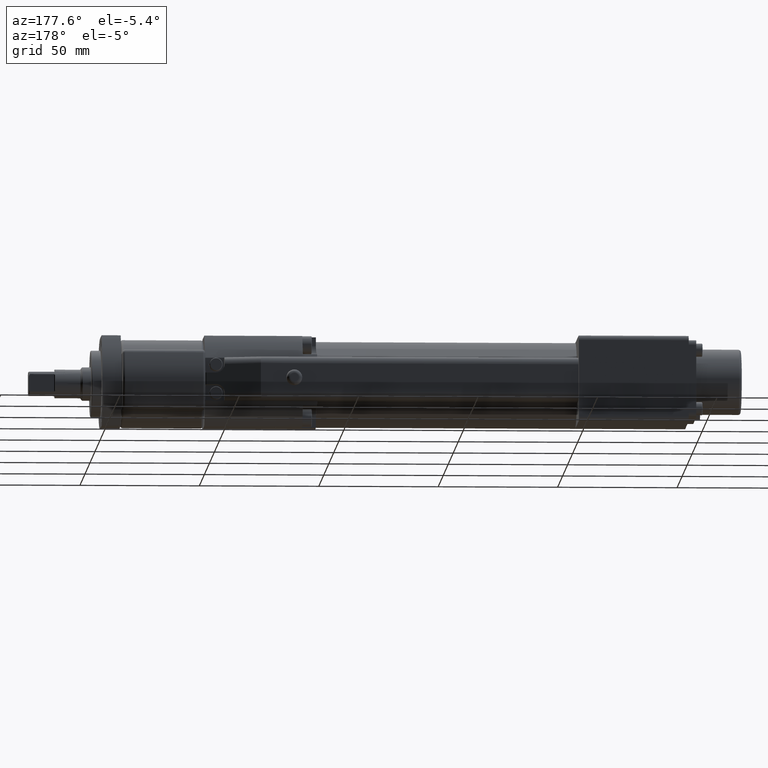
[diagram: clean part render]
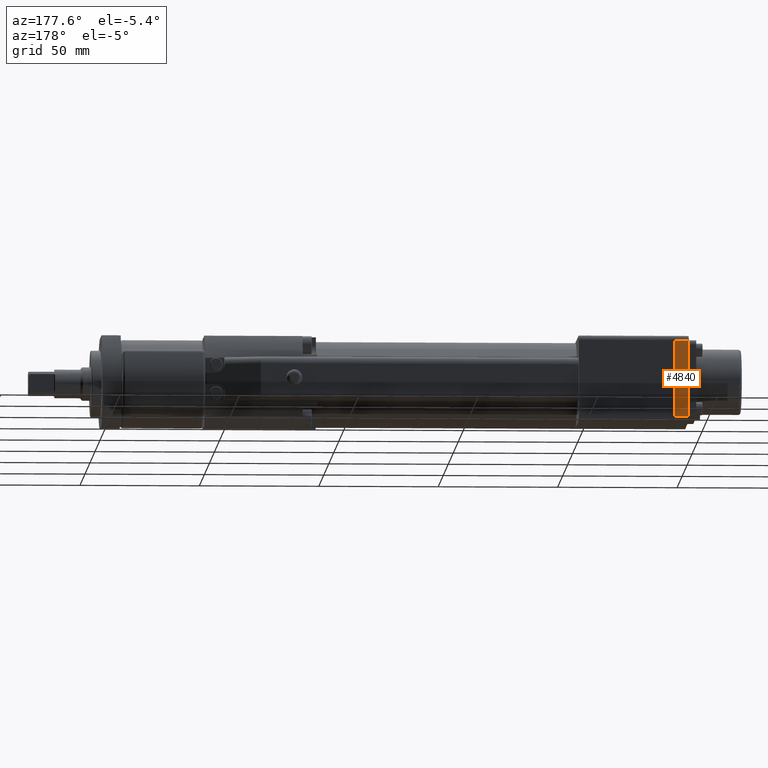
[diagram: same view with one face highlighted and labeled with its STEP entity id]
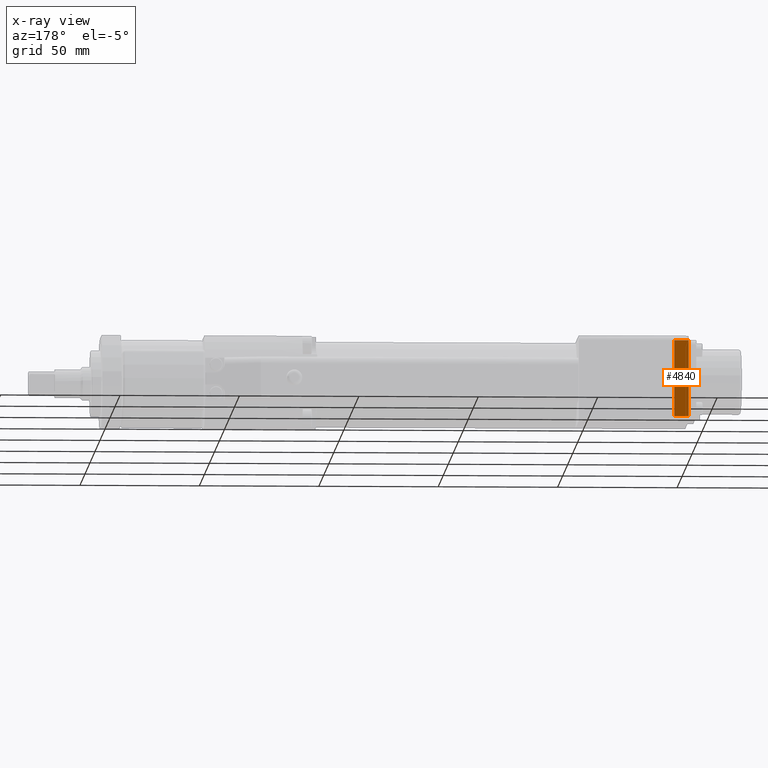
[diagram: x-ray of the same camera — body ghosted, the highlighted face saturated]
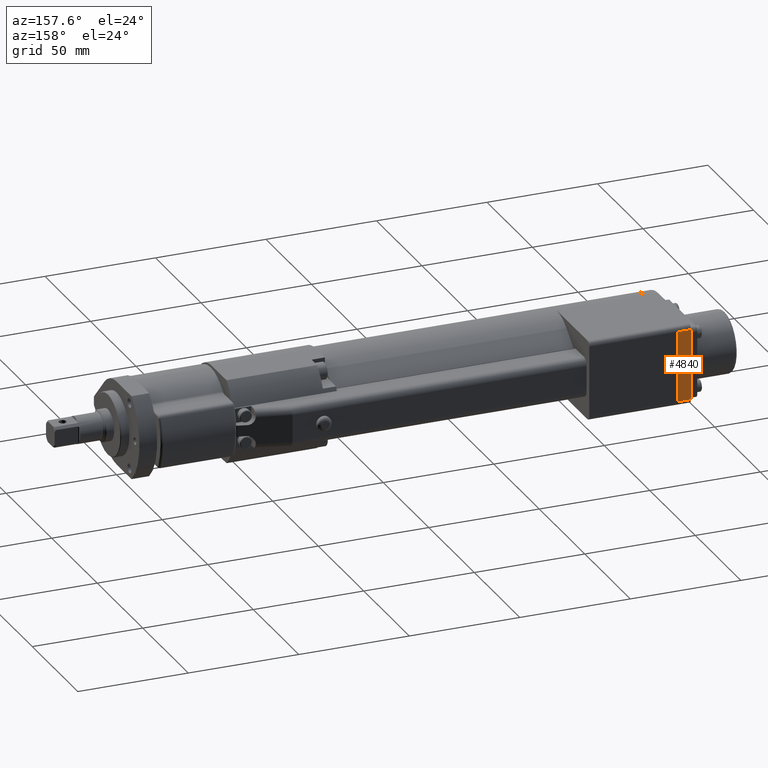
[diagram: same view with one face highlighted and labeled with its STEP entity id]
A machine part, auxiliary view. The second image highlights one B-rep face of the part: STEP entity #4840.
The next image is the same camera in x-ray: the body ghosted, the highlighted face saturated — about 0% of this face is hidden behind the body in this view.
A second angle (auxiliary view) of the same face is appended — the face is thin or edge-on in the first view.
In plain terms, the highlighted planar face has unit normal (0, -1, 0).
Its self-contained STEP definition (entity closure, byte-faithful):
#438 = CARTESIAN_POINT ( 'NONE',  ( -245.0000000000000300, 36.00000000000000700, 18.00000000000000400 ) ) ;
#696 = CARTESIAN_POINT ( 'NONE',  ( -245.0000000000000300, 36.00000000000000000, -16.00000000000000700 ) ) ;
#830 = VERTEX_POINT ( 'NONE', #1143 ) ;
#923 = CARTESIAN_POINT ( 'NONE',  ( -245.0000000000000300, 36.00000000000000700, 16.00000000000000400 ) ) ;
#1143 = CARTESIAN_POINT ( 'NONE',  ( -239.0000000000000300, 36.00000000000000000, -16.00000000000000700 ) ) ;
#1475 = CARTESIAN_POINT ( 'NONE',  ( -245.0000000000000300, 36.00000000000000700, 18.00000000000000400 ) ) ;
#1628 = CARTESIAN_POINT ( 'NONE',  ( -245.0000000000000300, 36.00000000000000700, 16.00000000000000400 ) ) ;
#1724 = CARTESIAN_POINT ( 'NONE',  ( -239.0000000000000300, 36.00000000000000700, 16.00000000000000400 ) ) ;
#1938 = LINE ( 'NONE', #923, #9630 ) ;
#1979 = PLANE ( 'NONE',  #7184 ) ;
#2403 = DIRECTION ( 'NONE',  ( -1.000000000000000000, -0.0000000000000000000, -0.0000000000000000000 ) ) ;
#2721 = DIRECTION ( 'NONE',  ( 0.0000000000000000000, -1.000000000000000000, 1.927470528863118100E-016 ) ) ;
#3058 = VECTOR ( 'NONE', #8305, 1000.000000000000000 ) ;
#3290 = EDGE_LOOP ( 'NONE', ( #9222, #6677, #3411, #4085 ) ) ;
#3411 = ORIENTED_EDGE ( 'NONE', *, *, #4279, .T. ) ;
#3498 = EDGE_CURVE ( 'NONE', #8106, #3514, #1938, .T. ) ;
#3514 = VERTEX_POINT ( 'NONE', #1724 ) ;
#3834 = CARTESIAN_POINT ( 'NONE',  ( -239.0000000000000300, 36.00000000000000700, 18.00000000000000400 ) ) ;
#4085 = ORIENTED_EDGE ( 'NONE', *, *, #5176, .T. ) ;
#4160 = EDGE_CURVE ( 'NONE', #8106, #9641, #6226, .T. ) ;
#4279 = EDGE_CURVE ( 'NONE', #3514, #830, #9020, .T. ) ;
#4840 = ADVANCED_FACE ( 'NONE', ( #6475 ), #1979, .F. ) ;
#5176 = EDGE_CURVE ( 'NONE', #830, #9641, #7395, .T. ) ;
#5356 = CARTESIAN_POINT ( 'NONE',  ( -245.0000000000000300, 36.00000000000000000, -16.00000000000000700 ) ) ;
#5386 = VECTOR ( 'NONE', #2403, 1000.000000000000000 ) ;
#6226 = LINE ( 'NONE', #1475, #7972 ) ;
#6475 = FACE_OUTER_BOUND ( 'NONE', #3290, .T. ) ;
#6677 = ORIENTED_EDGE ( 'NONE', *, *, #3498, .T. ) ;
#7184 = AXIS2_PLACEMENT_3D ( 'NONE', #438, #2721, #7924 ) ;
#7395 = LINE ( 'NONE', #5356, #5386 ) ;
#7448 = DIRECTION ( 'NONE',  ( 0.0000000000000000000, -1.927470528863118300E-016, -1.000000000000000000 ) ) ;
#7924 = DIRECTION ( 'NONE',  ( 0.0000000000000000000, -1.927470528863118100E-016, -1.000000000000000000 ) ) ;
#7972 = VECTOR ( 'NONE', #7448, 1000.000000000000000 ) ;
#8106 = VERTEX_POINT ( 'NONE', #1628 ) ;
#8305 = DIRECTION ( 'NONE',  ( 0.0000000000000000000, -1.927470528863118300E-016, -1.000000000000000000 ) ) ;
#9020 = LINE ( 'NONE', #3834, #3058 ) ;
#9173 = DIRECTION ( 'NONE',  ( 1.000000000000000000, 0.0000000000000000000, 0.0000000000000000000 ) ) ;
#9222 = ORIENTED_EDGE ( 'NONE', *, *, #4160, .F. ) ;
#9630 = VECTOR ( 'NONE', #9173, 1000.000000000000000 ) ;
#9641 = VERTEX_POINT ( 'NONE', #696 ) ;